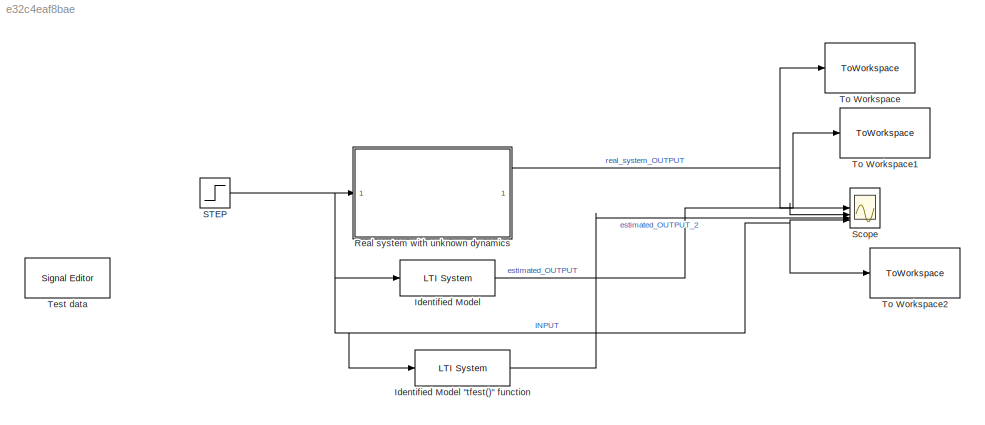
MODEL slx_e32c4eaf8bae
KIND model
CONFIG AbsTol = auto
CONFIG EnableMultiTasking = off
CONFIG FixedStep = 0.01
CONFIG MaxStep = auto
CONFIG MinStep = auto
CONFIG RelTol = 1e-3
CONFIG SampleTimeConstraint = Unconstrained
CONFIG SolverName = FixedStepAuto
CONFIG StartTime = 0.0
CONFIG StopTime = 70.0
BLOCK [Reference] Identified Model  REF=cstblocks/LTI System
  SourceBlock = cstblocks/LTI System
  SourceType = LTI Block
BLOCK [Reference] Identified Model "tfest()" function  REF=cstblocks/LTI System
  SourceBlock = cstblocks/LTI System
  SourceType = LTI Block
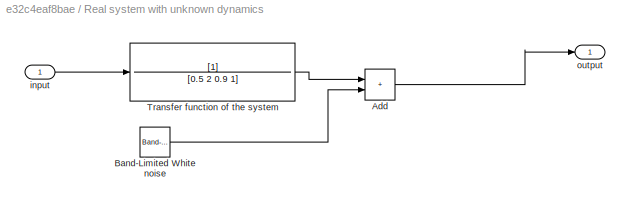
BLOCK [SubSystem] Real system with unknown dynamics
BLOCK [Sum] Real system with unknown dynamics/Add
  IconShape = rectangular
BLOCK [Reference] Real system with unknown dynamics/Band-Limited White noise  REF=simulink/Sources/Band-Limited
White Noise
  SourceBlock = simulink/Sources/Band-Limited\nWhite Noise
  SourceType = Band-Limited White Noise.
BLOCK [TransferFcn] Real system with unknown dynamics/Transfer function of the system
  Denominator = [0.5 2 0.9 1]
BLOCK [Inport] Real system with unknown dynamics/input
BLOCK [Outport] Real system with unknown dynamics/output
BLOCK [Step] STEP
  SampleTime = 0
  Time = 10
BLOCK [Scope] Scope
  Floating = off
  NumInputPorts = 4
  ScopeSpecificationString = Simulink.scopes.TimeScopeBlockCfg('CurrentConfiguration', extmgr.ConfigurationSet(extmgr.Configuration('Core','General UI',true),extmgr.Configuration('Core','Source UI',true),extmgr.Configuration('Sources','WiredSimulink',true),extmgr.Configuration('Visuals','Time Domain',true,'SerializedDisplays',{struct('MinYLimReal','-0.30799','MaxYLimReal','1.72951','YLabelReal','','MinYLimMag','0.00000','MaxY...<+1629ch>
BLOCK [Reference] Test data  REF=SignalEditorBlockLib/Signal Editor
  LibrarySourceBlock = simulink/Sources/Signal Editor
  SourceBlock = SignalEditorBlockLib/Signal Editor
  SourceType = SignalEditor
  UserDataPersistent = on
BLOCK [ToWorkspace] To Workspace
  FixptAsFi = on
  MaxDataPoints = inf
  SampleTime = -1
  SaveFormat = Timeseries
  VariableName = real_sys
BLOCK [ToWorkspace] To Workspace1
  FixptAsFi = on
  MaxDataPoints = inf
  SampleTime = -1
  SaveFormat = Timeseries
  VariableName = estimated
BLOCK [ToWorkspace] To Workspace2
  FixptAsFi = on
  MaxDataPoints = inf
  SampleTime = -1
  SaveFormat = Timeseries
  VariableName = input
LINE Identified Model "tfest()" function:1 -> Scope:3
NET Identified Model:1 -> Scope:2, To Workspace1:1
LINE Real system with unknown dynamics/Add:1 -> Real system with unknown dynamics/output:1
LINE Real system with unknown dynamics/Band-Limited White noise:1 -> Real system with unknown dynamics/Add:2
LINE Real system with unknown dynamics/Transfer function of the system:1 -> Real system with unknown dynamics/Add:1
LINE Real system with unknown dynamics/input:1 -> Real system with unknown dynamics/Transfer function of the system:1
NET Real system with unknown dynamics:1 -> Scope:1, To Workspace:1
NET STEP:1 -> Identified Model "tfest()" function:1, Identified Model:1, Real system with unknown dynamics:1, Scope:4, To Workspace2:1
note: NET lines group one-source signal fan-out (src -> all destinations, sorted); 1:1 wires keep LINE
